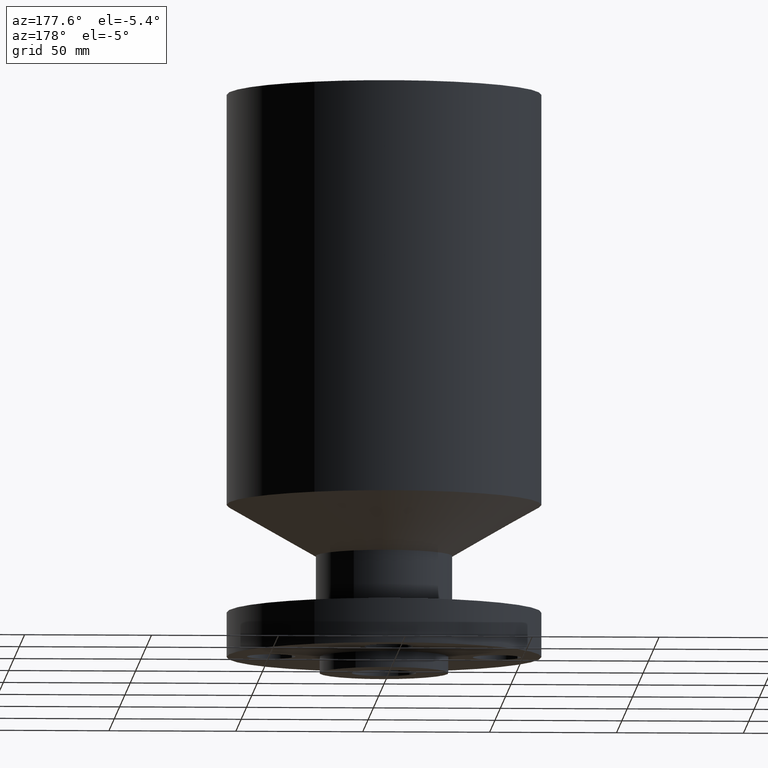
[diagram: clean part render]
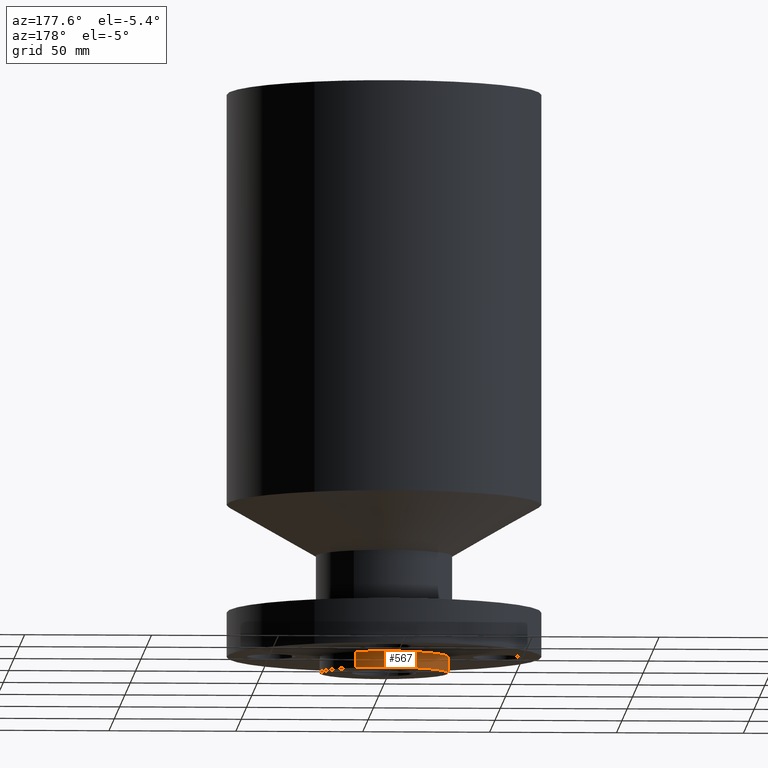
[diagram: same view with one face highlighted and labeled with its STEP entity id]
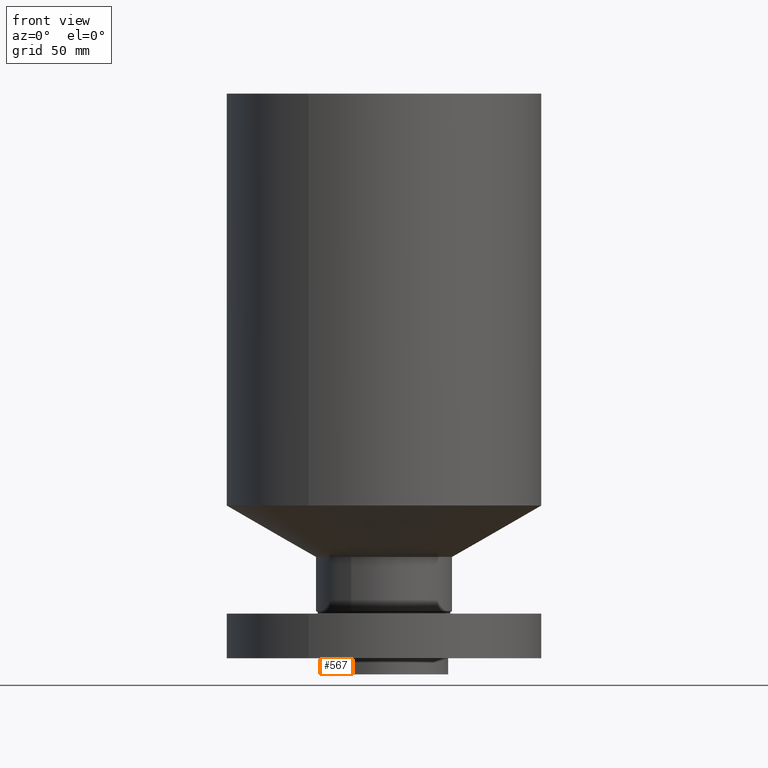
[diagram: same view with one face highlighted and labeled with its STEP entity id]
A machine part, auxiliary view. The second image highlights one B-rep face of the part: STEP entity #567.
A second angle (front view) of the same face is appended — the face is thin or edge-on in the first view.
In plain terms, the highlighted cylindrical surface (partial cylindrical patch) has radius 25.4 mm, axis along (0, 0, -1).
Its self-contained STEP definition (entity closure, byte-faithful):
#118=AXIS2_PLACEMENT_3D('Circle Axis2P3D',#116,#117,$) ;
#525=AXIS2_PLACEMENT_3D('Circle Axis2P3D',#523,#524,$) ;
#549=AXIS2_PLACEMENT_3D('Cylinder Axis2P3D',#546,#547,#548) ;
#111=CARTESIAN_POINT('Vertex',(0.479425538606,0.877582561894,0.)) ;
#113=CARTESIAN_POINT('Vertex',(-0.479425538606,-0.877582561894,0.)) ;
#116=CARTESIAN_POINT('Axis2P3D Location',(0.,0.,0.)) ;
#523=CARTESIAN_POINT('Axis2P3D Location',(0.,0.,-0.250000000001)) ;
#527=CARTESIAN_POINT('Vertex',(-0.479425538606,-0.877582561894,-0.250000000001)) ;
#529=CARTESIAN_POINT('Vertex',(0.479425538606,0.877582561894,-0.250000000001)) ;
#546=CARTESIAN_POINT('Axis2P3D Location',(0.,0.,4.25000000002)) ;
#551=CARTESIAN_POINT('Line Origine',(-0.479425538606,-0.877582561894,-0.125000000001)) ;
#556=CARTESIAN_POINT('Line Origine',(0.479425538606,0.877582561894,-0.125000000001)) ;
#117=DIRECTION('Axis2P3D Direction',(0.,0.,-0.0393700787402)) ;
#524=DIRECTION('Axis2P3D Direction',(0.,0.,-0.0393700787402)) ;
#547=DIRECTION('Axis2P3D Direction',(0.,0.,-0.0393700787402)) ;
#548=DIRECTION('Axis2P3D XDirection',(0.0188750212049,0.0345504945626,0.)) ;
#552=DIRECTION('Vector Direction',(0.,0.,-0.0393700787402)) ;
#557=DIRECTION('Vector Direction',(0.,0.,-0.0393700787402)) ;
#553=VECTOR('Line Direction',#552,0.0393700787402) ;
#558=VECTOR('Line Direction',#557,0.0393700787402) ;
#562=ORIENTED_EDGE('',*,*,#531,.F.) ;
#563=ORIENTED_EDGE('',*,*,#555,.T.) ;
#564=ORIENTED_EDGE('',*,*,#120,.T.) ;
#565=ORIENTED_EDGE('',*,*,#560,.F.) ;
#567=ADVANCED_FACE('PartBody',(#566),#550,.T.) ;
#119=CIRCLE('generated circle',#118,1.) ;
#526=CIRCLE('generated circle',#525,1.) ;
#550=CYLINDRICAL_SURFACE('generated cylinder',#549,1.) ;
#120=EDGE_CURVE('',#114,#112,#119,.T.) ;
#531=EDGE_CURVE('',#528,#530,#526,.T.) ;
#555=EDGE_CURVE('',#528,#114,#554,.F.) ;
#560=EDGE_CURVE('',#530,#112,#559,.F.) ;
#561=EDGE_LOOP('',(#562,#563,#564,#565)) ;
#566=FACE_OUTER_BOUND('',#561,.T.) ;
#554=LINE('Line',#551,#553) ;
#559=LINE('Line',#556,#558) ;
#112=VERTEX_POINT('',#111) ;
#114=VERTEX_POINT('',#113) ;
#528=VERTEX_POINT('',#527) ;
#530=VERTEX_POINT('',#529) ;